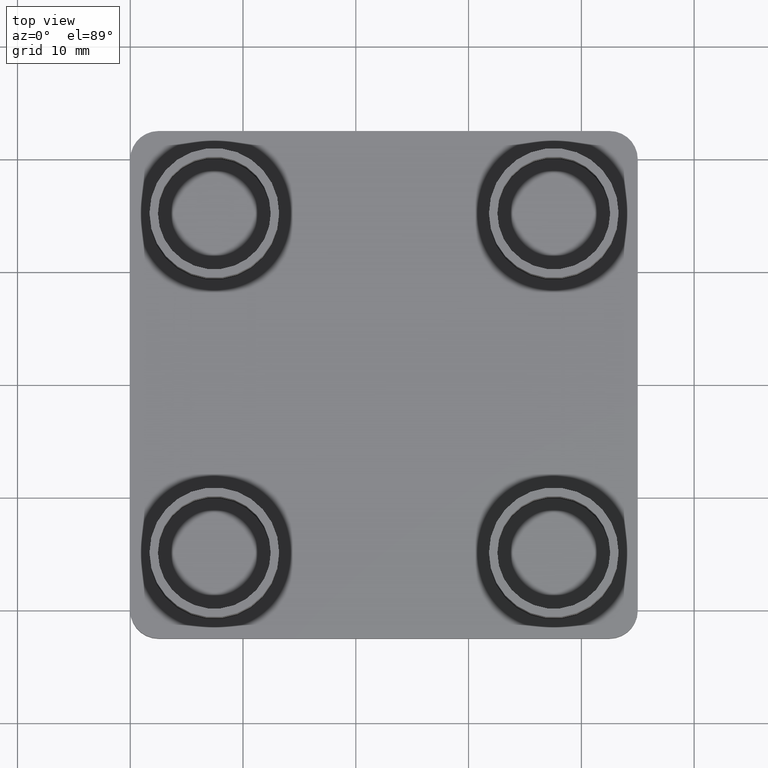
[diagram: clean part render]
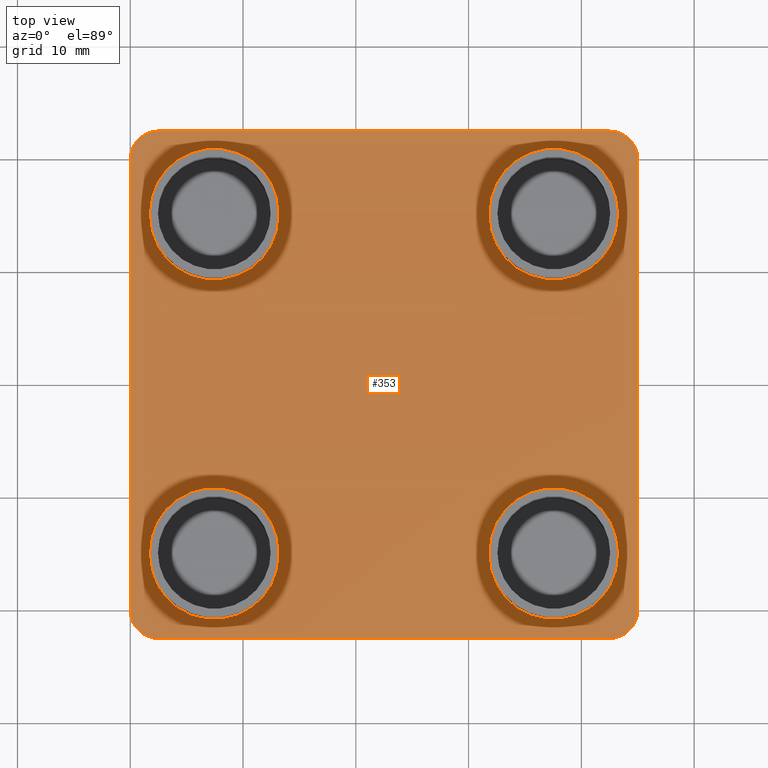
[diagram: same view with one face highlighted and labeled with its STEP entity id]
A machine part, top view. The second image highlights one B-rep face of the part: STEP entity #353.
In plain terms, the highlighted planar face has unit normal (0, 0, 1).
Its self-contained STEP definition (entity closure, byte-faithful):
#7=CARTESIAN_POINT('',(0.000000499999715,-19.999977499920078,0.0));
#8=VERTEX_POINT('',#7);
#26=CARTESIAN_POINT('',(2.500000499989710,-22.499977499910074,0.0));
#27=VERTEX_POINT('',#26);
#34=CARTESIAN_POINT('',(2.500000499989710,-19.999977499920078,0.0));
#35=DIRECTION('',(0.0,0.0,1.0));
#36=DIRECTION('',(1.0,0.0,0.0));
#37=AXIS2_PLACEMENT_3D('',#34,#35,#36);
#38=CIRCLE('',#37,2.499999999990000);
#39=EDGE_CURVE('',#8,#27,#38,.T.);
#58=CARTESIAN_POINT('',(42.499954499829528,-22.499978499909957,0.0));
#59=VERTEX_POINT('',#58);
#66=CARTESIAN_POINT('',(2.500000499989710,-22.499977499910074,0.0));
#67=DIRECTION('',(1.000000000000000,-0.000000025000029,0.0));
#68=VECTOR('',#67,39.999953999840024);
#69=LINE('',#66,#68);
#70=EDGE_CURVE('',#27,#59,#69,.T.);
#90=CARTESIAN_POINT('',(44.999954499819978,-19.999978499919962,0.0));
#91=VERTEX_POINT('',#90);
#98=CARTESIAN_POINT('',(42.499954499829528,-19.999978499919962,0.0));
#99=DIRECTION('',(0.0,0.0,1.0));
#100=DIRECTION('',(1.0,0.0,0.0));
#101=AXIS2_PLACEMENT_3D('',#98,#99,#100);
#102=CIRCLE('',#101,2.499999999990000);
#103=EDGE_CURVE('',#59,#91,#102,.T.);
#122=CARTESIAN_POINT('',(44.999955499819862,19.999977499920078,0.0));
#123=VERTEX_POINT('',#122);
#130=CARTESIAN_POINT('',(44.999954499819857,-19.999978499919919,0.0));
#131=DIRECTION('',(0.000000025000028,1.000000000000000,0.0));
#132=VECTOR('',#131,39.999955999840012);
#133=LINE('',#130,#132);
#134=EDGE_CURVE('',#91,#123,#133,.T.);
#154=CARTESIAN_POINT('',(42.499955499829866,22.499977499910074,0.0));
#155=VERTEX_POINT('',#154);
#162=CARTESIAN_POINT('',(42.499955499829866,19.999977499920078,0.0));
#163=DIRECTION('',(0.0,0.0,1.0));
#164=DIRECTION('',(1.0,0.0,0.0));
#165=AXIS2_PLACEMENT_3D('',#162,#163,#164);
#166=CIRCLE('',#165,2.499999999990000);
#167=EDGE_CURVE('',#123,#155,#166,.T.);
#186=CARTESIAN_POINT('',(2.499999499989826,22.499977499910074,0.0));
#187=VERTEX_POINT('',#186);
#194=CARTESIAN_POINT('',(42.499955499829866,22.499977499910074,0.0));
#195=DIRECTION('',(-1.0,0.0,0.0));
#196=VECTOR('',#195,39.999955999840019);
#197=LINE('',#194,#196);
#198=EDGE_CURVE('',#155,#187,#197,.T.);
#218=CARTESIAN_POINT('',(-0.000000500000169,19.999977499920078,0.0));
#219=VERTEX_POINT('',#218);
#226=CARTESIAN_POINT('',(2.499999499989826,19.999977499920078,0.0));
#227=DIRECTION('',(0.0,0.0,1.0));
#228=DIRECTION('',(1.0,0.0,0.0));
#229=AXIS2_PLACEMENT_3D('',#226,#227,#228);
#230=CIRCLE('',#229,2.499999999990000);
#231=EDGE_CURVE('',#187,#219,#230,.T.);
#249=CARTESIAN_POINT('',(-0.000000500000169,19.999977499920078,0.0));
#250=DIRECTION('',(0.000000025000028,-1.000000000000000,0.0));
#251=VECTOR('',#250,39.999954999840007);
#252=LINE('',#249,#251);
#253=EDGE_CURVE('',#219,#8,#252,.T.);
#258=CARTESIAN_POINT('',(-4.500000833933882,-26.999978833734076,0.0));
#259=DIRECTION('',(0.0,0.0,1.0));
#260=DIRECTION('',(1.0,0.0,0.0));
#261=AXIS2_PLACEMENT_3D('',#258,#259,#260);
#262=PLANE('',#261);
#263=ORIENTED_EDGE('',*,*,#39,.T.);
#264=ORIENTED_EDGE('',*,*,#70,.T.);
#265=ORIENTED_EDGE('',*,*,#103,.T.);
#266=ORIENTED_EDGE('',*,*,#134,.T.);
#267=ORIENTED_EDGE('',*,*,#167,.T.);
#268=ORIENTED_EDGE('',*,*,#198,.T.);
#269=ORIENTED_EDGE('',*,*,#231,.T.);
#270=ORIENTED_EDGE('',*,*,#253,.T.);
#271=EDGE_LOOP('',(#263,#264,#265,#266,#267,#268,#269,#270));
#272=FACE_OUTER_BOUND('',#271,.T.);
#273=CARTESIAN_POINT('',(31.799955499872603,-15.050022499940042,0.0));
#274=VERTEX_POINT('',#273);
#275=CARTESIAN_POINT('',(43.299955499826410,-15.050022499940042,0.0));
#276=VERTEX_POINT('',#275);
#277=CARTESIAN_POINT('',(37.549955499849602,-15.050022499940042,0.0));
#278=DIRECTION('',(0.0,0.0,1.0));
#279=DIRECTION('',(1.0,0.0,0.0));
#280=AXIS2_PLACEMENT_3D('',#277,#278,#279);
#281=CIRCLE('',#280,5.749999999977001);
#282=EDGE_CURVE('',#274,#276,#281,.T.);
#283=ORIENTED_EDGE('',*,*,#282,.F.);
#284=CARTESIAN_POINT('',(37.549955499849602,-15.050022499940042,0.0));
#285=DIRECTION('',(0.0,0.0,1.0));
#286=DIRECTION('',(1.0,0.0,0.0));
#287=AXIS2_PLACEMENT_3D('',#284,#285,#286);
#288=CIRCLE('',#287,5.749999999977001);
#289=EDGE_CURVE('',#276,#274,#288,.T.);
#290=ORIENTED_EDGE('',*,*,#289,.F.);
#291=EDGE_LOOP('',(#283,#290));
#292=FACE_BOUND('',#291,.T.);
#293=CARTESIAN_POINT('',(1.699955499992746,-15.050022499940042,0.0));
#294=VERTEX_POINT('',#293);
#295=CARTESIAN_POINT('',(13.199955499946554,-15.050022499940042,0.0));
#296=VERTEX_POINT('',#295);
#297=CARTESIAN_POINT('',(7.449955499969747,-15.050022499940042,0.0));
#298=DIRECTION('',(0.0,0.0,1.0));
#299=DIRECTION('',(1.0,0.0,0.0));
#300=AXIS2_PLACEMENT_3D('',#297,#298,#299);
#301=CIRCLE('',#300,5.749999999977001);
#302=EDGE_CURVE('',#294,#296,#301,.T.);
#303=ORIENTED_EDGE('',*,*,#302,.F.);
#304=CARTESIAN_POINT('',(7.449955499969747,-15.050022499940042,0.0));
#305=DIRECTION('',(0.0,0.0,1.0));
#306=DIRECTION('',(1.0,0.0,0.0));
#307=AXIS2_PLACEMENT_3D('',#304,#305,#306);
#308=CIRCLE('',#307,5.749999999977001);
#309=EDGE_CURVE('',#296,#294,#308,.T.);
#310=ORIENTED_EDGE('',*,*,#309,.F.);
#311=EDGE_LOOP('',(#303,#310));
#312=FACE_BOUND('',#311,.T.);
#313=CARTESIAN_POINT('',(1.699955499992746,15.050022499939587,0.0));
#314=VERTEX_POINT('',#313);
#315=CARTESIAN_POINT('',(13.199955499946554,15.050022499939587,0.0));
#316=VERTEX_POINT('',#315);
#317=CARTESIAN_POINT('',(7.449955499969747,15.050022499939587,0.0));
#318=DIRECTION('',(0.0,0.0,1.0));
#319=DIRECTION('',(1.0,0.0,0.0));
#320=AXIS2_PLACEMENT_3D('',#317,#318,#319);
#321=CIRCLE('',#320,5.749999999977001);
#322=EDGE_CURVE('',#314,#316,#321,.T.);
#323=ORIENTED_EDGE('',*,*,#322,.F.);
#324=CARTESIAN_POINT('',(7.449955499969747,15.050022499939587,0.0));
#325=DIRECTION('',(0.0,0.0,1.0));
#326=DIRECTION('',(1.0,0.0,0.0));
#327=AXIS2_PLACEMENT_3D('',#324,#325,#326);
#328=CIRCLE('',#327,5.749999999977001);
#329=EDGE_CURVE('',#316,#314,#328,.T.);
#330=ORIENTED_EDGE('',*,*,#329,.F.);
#331=EDGE_LOOP('',(#323,#330));
#332=FACE_BOUND('',#331,.T.);
#333=CARTESIAN_POINT('',(31.799955499872603,15.049977499939814,0.0));
#334=VERTEX_POINT('',#333);
#335=CARTESIAN_POINT('',(43.299955499826410,15.049977499939814,0.0));
#336=VERTEX_POINT('',#335);
#337=CARTESIAN_POINT('',(37.549955499849602,15.049977499939814,0.0));
#338=DIRECTION('',(0.0,0.0,1.0));
#339=DIRECTION('',(1.0,0.0,0.0));
#340=AXIS2_PLACEMENT_3D('',#337,#338,#339);
#341=CIRCLE('',#340,5.749999999977001);
#342=EDGE_CURVE('',#334,#336,#341,.T.);
#343=ORIENTED_EDGE('',*,*,#342,.F.);
#344=CARTESIAN_POINT('',(37.549955499849602,15.049977499939814,0.0));
#345=DIRECTION('',(0.0,0.0,1.0));
#346=DIRECTION('',(1.0,0.0,0.0));
#347=AXIS2_PLACEMENT_3D('',#344,#345,#346);
#348=CIRCLE('',#347,5.749999999977001);
#349=EDGE_CURVE('',#336,#334,#348,.T.);
#350=ORIENTED_EDGE('',*,*,#349,.F.);
#351=EDGE_LOOP('',(#343,#350));
#352=FACE_BOUND('',#351,.T.);
#353=ADVANCED_FACE('',(#272,#292,#312,#332,#352),#262,.T.);